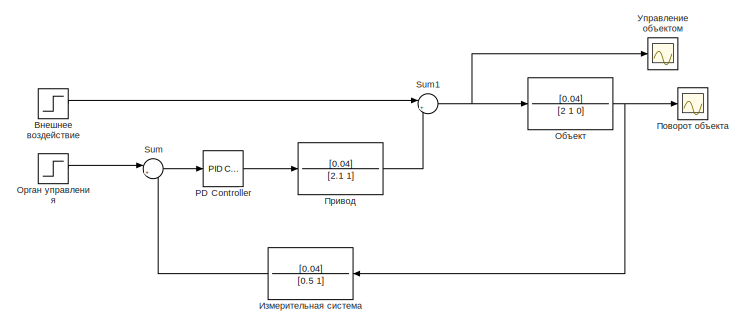
[diagram: root canvas - part 1/2, middle left region]
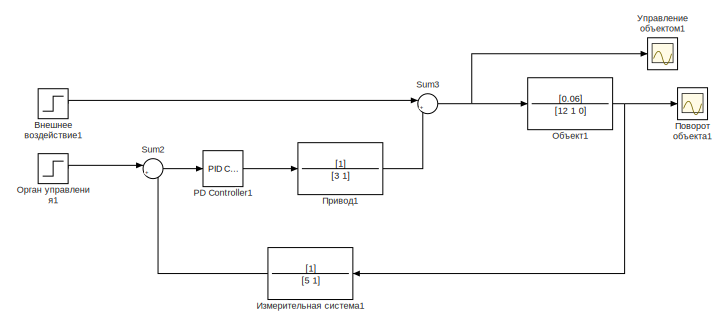
[diagram: root canvas - part 2/2, bottom right region]
MODEL slx_2c6bee817790
KIND model
CONFIG AbsTol = auto
CONFIG EnableMultiTasking = off
CONFIG FixedStep = 0.01
CONFIG MaxStep = auto
CONFIG MinStep = auto
CONFIG RelTol = 1e-3
CONFIG SampleTimeConstraint = Unconstrained
CONFIG SolverName = FixedStepAuto
CONFIG StartTime = 0.0
CONFIG StopTime = 2000
BLOCK [Reference] PD Controller  REF=pid_lib/PID Controller
  NameLocation = top
  Ports = [1, 1]
  SourceBlock = pid_lib/PID Controller
  SourceProductBaseCode = SL
  SourceType = PID 1dof
BLOCK [Reference] PD Controller1  REF=pid_lib/PID Controller
  NameLocation = top
  Ports = [1, 1]
  SourceBlock = pid_lib/PID Controller
  SourceProductBaseCode = SL
  SourceType = PID 1dof
BLOCK [Sum] Sum
  Inputs = |+-
  Ports = [2, 1]
BLOCK [Sum] Sum1
  Inputs = |++
  Ports = [2, 1]
BLOCK [Sum] Sum2
  Inputs = |+-
  Ports = [2, 1]
BLOCK [Sum] Sum3
  Inputs = |++
  Ports = [2, 1]
BLOCK [Step] Внешнее воздействие
  NameLocation = top
  SampleTime = 0
  Time = 0
BLOCK [Step] Внешнее воздействие1
  After = 2
  NameLocation = top
  SampleTime = 0
  Time = 0
BLOCK [TransferFcn] Измерительная система
  Denominator = [0.5 1]
  NameLocation = top
  Numerator = [0.04]
BLOCK [TransferFcn] Измерительная система1
  Denominator = [5 1]
  NameLocation = top
BLOCK [TransferFcn] Объект
  Denominator = [2 1 0]
  NameLocation = top
  Numerator = [0.04]
BLOCK [TransferFcn] Объект1
  Denominator = [12 1 0]
  NameLocation = top
  Numerator = [0.06]
BLOCK [Step] Орган управления
  After = 5
  NameLocation = top
  SampleTime = 0
  Time = 0
BLOCK [Step] Орган управления1
  After = 10
  NameLocation = top
  SampleTime = 0
  Time = 0
BLOCK [Scope] Поворот объекта
  Floating = off
  NumInputPorts = 1
  Ports = [1]
  ScopeSpecificationString = Simulink.scopes.TimeScopeBlockCfg('CurrentConfiguration', extmgr.ConfigurationSet(extmgr.Configuration('Core','General UI',true,'FigureColor',[1 1 1]),extmgr.Configuration('Core','Source UI',true),extmgr.Configuration('Sources','WiredSimulink',true,'DataLogging',true,'DataLoggingVariableName','Povorot','DataLoggingSaveFormat','Array'),extmgr.Configuration('Visuals','Time Domain',true,'SerializedDi...<+1638ch>
BLOCK [Scope] Поворот объекта1
  Floating = off
  NumInputPorts = 1
  Ports = [1]
  ScopeSpecificationString = Simulink.scopes.TimeScopeBlockCfg('CurrentConfiguration', extmgr.ConfigurationSet(extmgr.Configuration('Core','General UI',true,'FigureColor',[1 1 1]),extmgr.Configuration('Core','Source UI',true),extmgr.Configuration('Sources','WiredSimulink',true,'DataLogging',true,'DataLoggingVariableName','Povorot2','DataLoggingSaveFormat','Array'),extmgr.Configuration('Visuals','Time Domain',true,'SerializedD...<+1638ch>
BLOCK [TransferFcn] Привод
  Denominator = [2.1 1]
  NameLocation = top
  Numerator = [0.04]
BLOCK [TransferFcn] Привод1
  Denominator = [3 1]
  NameLocation = top
BLOCK [Scope] Управление объектом
  Floating = off
  NameLocation = top
  NumInputPorts = 1
  Ports = [1]
  ScopeSpecificationString = Simulink.scopes.TimeScopeBlockCfg('CurrentConfiguration', extmgr.ConfigurationSet(extmgr.Configuration('Core','General UI',true,'FigureColor',[1 1 1]),extmgr.Configuration('Core','Source UI',true),extmgr.Configuration('Sources','WiredSimulink',true,'DataLoggingVariableName','Uprav','DataLogging',true,'DataLoggingSaveFormat','Array'),extmgr.Configuration('Visuals','Time Domain',true,'SerializedDisp...<+1668ch>
BLOCK [Scope] Управление объектом1
  Floating = off
  NameLocation = top
  NumInputPorts = 1
  Ports = [1]
  ScopeSpecificationString = Simulink.scopes.TimeScopeBlockCfg('CurrentConfiguration', extmgr.ConfigurationSet(extmgr.Configuration('Core','General UI',true,'FigureColor',[1 1 1]),extmgr.Configuration('Core','Source UI',true),extmgr.Configuration('Sources','WiredSimulink',true,'DataLoggingVariableName','Uprav2','DataLogging',true,'DataLoggingSaveFormat','Array'),extmgr.Configuration('Visuals','Time Domain',true,'SerializedDis...<+1665ch>
LINE PD Controller1:1 -> Привод1:1
LINE PD Controller:1 -> Привод:1
NET Sum1:1 -> Объект:1, Управление объектом:1
LINE Sum2:1 -> PD Controller1:1
NET Sum3:1 -> Объект1:1, Управление объектом1:1
LINE Sum:1 -> PD Controller:1
LINE Внешнее воздействие1:1 -> Sum3:1
LINE Внешнее воздействие:1 -> Sum1:1
LINE Измерительная система1:1 -> Sum2:2
LINE Измерительная система:1 -> Sum:2
NET Объект1:1 -> Измерительная система1:1, Поворот объекта1:1
NET Объект:1 -> Измерительная система:1, Поворот объекта:1
LINE Орган управления1:1 -> Sum2:1
LINE Орган управления:1 -> Sum:1
LINE Привод1:1 -> Sum3:2
LINE Привод:1 -> Sum1:2
note: NET lines group one-source signal fan-out (src -> all destinations, sorted); 1:1 wires keep LINE
